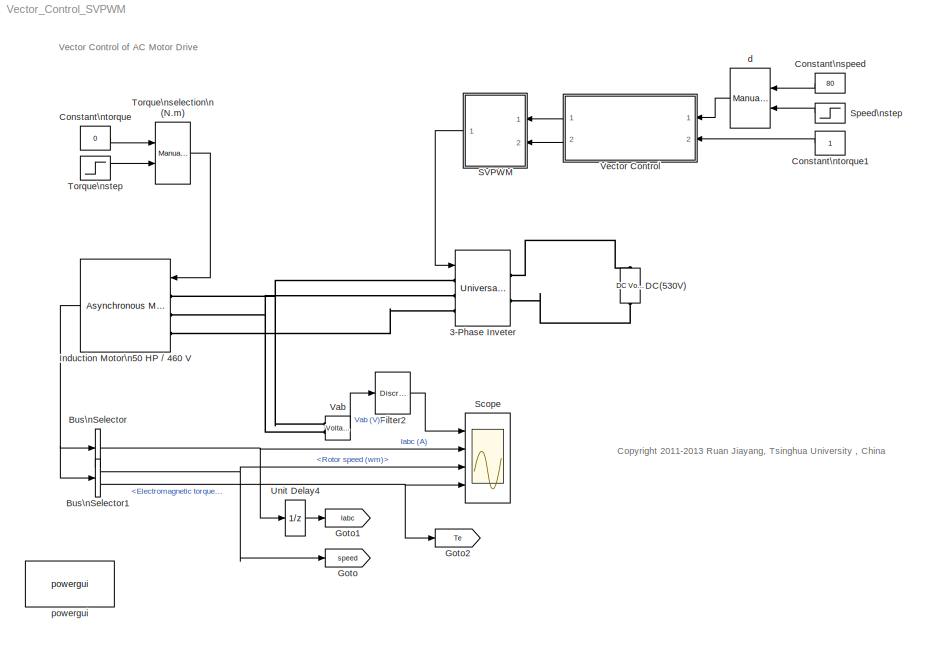
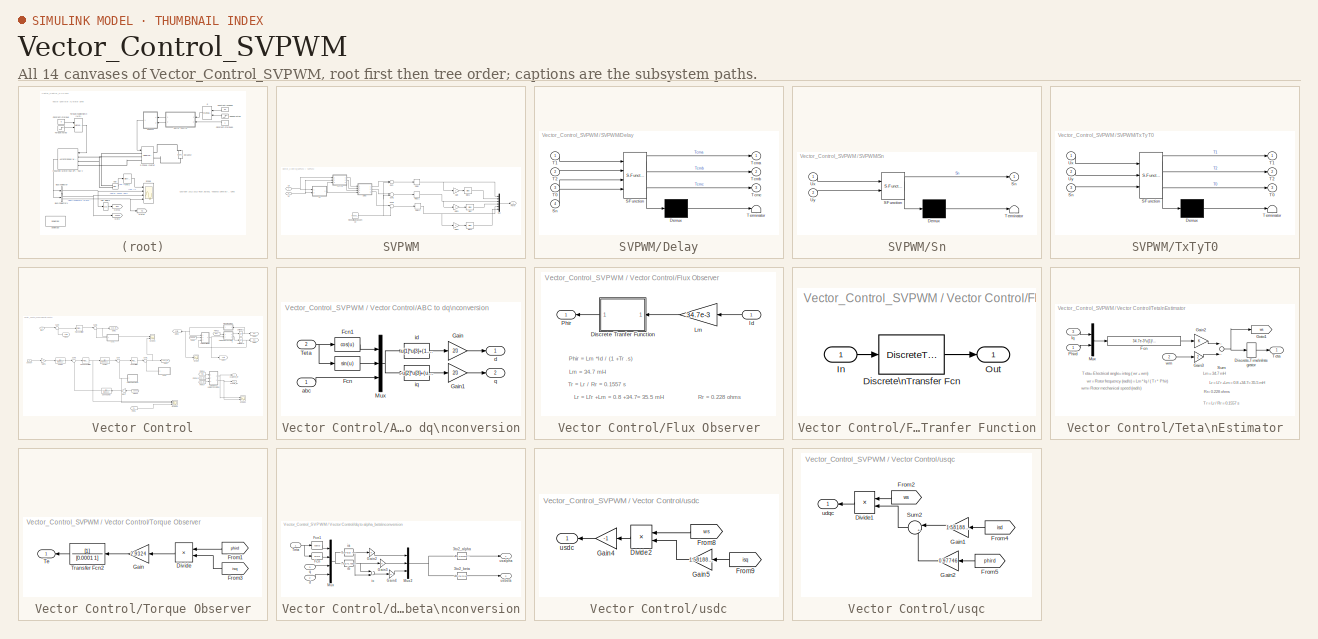
[diagram: thumbnail index - all 14 canvases of the model, root first then tree order]
MODEL Vector_Control_SVPWM
KIND model
CONFIG InitFcn = Ts=1e-5; 
CONFIG PreLoadFcn = Ts=1e-5; 
BLOCK [Reference] 3-Phase Inveter  REF=powerlib/Power\nElectronics/Universal Bridge
  Arms = 3
  Device = IGBT / Diodes
  DialogController = POWERSYS.PowerSysDialog
  ForwardVoltage = 0
  ForwardVoltages = [1.1  0.75]
  FunctionWithSeparateData = off
  GTOparameters = [ 10e-6 , 20e-6 ]
  IGBTparameters = [ 1e-6 , 2e-6 ]
  Lon = 0
  Measurements = None
  Measurements_2 = None
  Ports = [1, 0, 0, 0, 0, 3, 2]
  RTWMemSecDataConstants = Inherit from model
  RTWMemSecDataInternal = Inherit from model
  RTWMemSecDataParameters = Inherit from model
  RTWMemSecFuncExecute = Inherit from model
  RTWMemSecFuncInitTerm = Inherit from model
  Ron = 1e-3
  SID = 675
  ShowPortLabels = FromPortIcon
  SnubberCapacitance = 1e-6
  SnubberResistance = 1e5
  SourceBlock = powerlib/Power\nElectronics/Universal Bridge
  SourceType = Universal Bridge
  SystemSampleTime = -1
  converterType = Rectifier
BLOCK [BusSelector] Bus\nSelector
  OutputAsBus = on
  OutputSignals = Stator measurements.Stator current is_a (A),Stator measurements.Stator current is_b (A),Stator measurements.Stator current is_c (A)
  Ports = [1, 1]
  SID = 1
BLOCK [BusSelector] Bus\nSelector1
  OutputSignals = Mechanical.Rotor speed (wm),Mechanical.Electromagnetic torque Te (N*m)
  Ports = [1, 2]
  SID = 2
BLOCK [Constant] Constant\nspeed
  OutDataType = sfix(16)
  OutScaling = 2^0
  SID = 3
  Value = 80
BLOCK [Constant] Constant\ntorque
  OutDataType = sfix(16)
  OutScaling = 2^0
  SID = 4
  Value = 0
BLOCK [Constant] Constant\ntorque1
  OutDataType = sfix(16)
  OutScaling = 2^0
  SID = 605
BLOCK [Reference] DC(530V)  REF=powerlib/Electrical\nSources/DC Voltage Source
  Amplitude = 530
  DialogController = POWERSYS.PowerSysDialog
  FunctionWithSeparateData = off
  Measurements = None
  Ports = [0, 0, 0, 0, 0, 1, 1]
  RTWMemSecDataConstants = Inherit from model
  RTWMemSecDataInternal = Inherit from model
  RTWMemSecDataParameters = Inherit from model
  RTWMemSecFuncExecute = Inherit from model
  RTWMemSecFuncInitTerm = Inherit from model
  SID = 676
  ShowPortLabels = FromPortIcon
  SourceBlock = powerlib/Electrical\nSources/DC Voltage Source
  SourceType = DC Voltage Source
  SystemSampleTime = -1
BLOCK [Reference] Filter2  REF=powerlib_extras/Discrete \nControl Blocks/Discrete \n2nd-Order\nFilter
  DialogController = POWERSYS.PowerSysDialog
  FilterType = Lowpass
  Fo = 100
  FunctionWithSeparateData = off
  Initialize = off
  PlotResponse = off
  Ports = [1, 1]
  RTWMemSecDataConstants = Inherit from model
  RTWMemSecDataInternal = Inherit from model
  RTWMemSecDataParameters = Inherit from model
  RTWMemSecFuncExecute = Inherit from model
  RTWMemSecFuncInitTerm = Inherit from model
  SID = 680
  ShowPortLabels = FromPortIcon
  SourceBlock = powerlib_extras/Discrete \nControl Blocks/Discrete \n2nd-Order\nFilter
  SourceType = Discrete 2nd-Order Filter
  SystemSampleTime = -1
  Ts = Ts
  Vac_Init = [0.8 -25 60]
  Vdc_Init = -0.4
  Zeta = 0.707
  param1 = [1 500 1]
BLOCK [Goto] Goto
  GotoTag = speed
  SID = 5
  TagVisibility = global
BLOCK [Goto] Goto1
  GotoTag = Iabc
  SID = 6
  TagVisibility = global
BLOCK [Goto] Goto2
  GotoTag = Te
  SID = 627
  TagVisibility = global
BLOCK [Reference] Induction Motor\n50 HP // 460 V  REF=powerlib/Machines/Asynchronous Machine\nSI Units
  AttributesFormatString = \\n
  DialogController = POWERSYS.PowerSysDialog
  FunctionWithSeparateData = off
  InitialConditions = [ 1, 0 ,  0 , 0 , 0 , 0 , 0 , 0 ]
  IterativeModel = Trapezoidal non iterative
  Lm = 34.7e-3
  LoadFlowParameters = 0
  Mechanical = [1.662  0.01 2 ]
  MechanicalLoad = Torque Tm
  NominalParameters = [ 50*746, 460, 60 ]
  PolePairs = 2
  Ports = [1, 1, 0, 0, 0, 3]
  PresetModel = No
  RTWMemSecDataConstants = Inherit from model
  RTWMemSecDataInternal = Inherit from model
  RTWMemSecDataParameters = Inherit from model
  RTWMemSecFuncExecute = Inherit from model
  RTWMemSecFuncInitTerm = Inherit from model
  ReferenceFrame = Stationary
  Rotor = [ 0.228  0.8e-3 ]
  RotorType = Squirrel-cage
  SID = 8
  Saturation = [0 0;0 0]
  ShowDetailedParameters = on
  ShowPortLabels = FromPortIcon
  SimulateSaturation = off
  SourceBlock = powerlib/Machines/Asynchronous Machine\nSI Units
  SourceType = Asynchronous Machine
  Stator = [ 0.087 0.8e-3 ]
  SystemSampleTime = -1
  TsBlock = -1
  TsPowergui = 0
  Units = SI
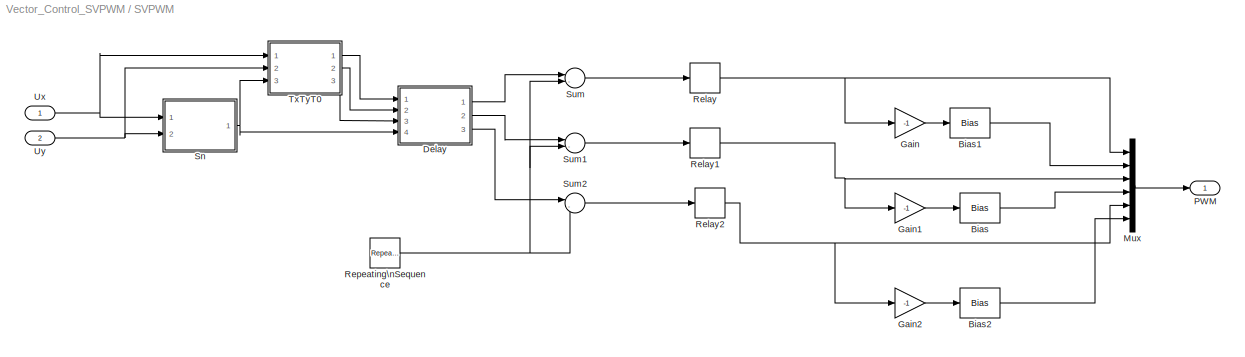
BLOCK [SubSystem] SVPWM
  FunctionWithSeparateData = off
  MaskHideContents = off
  MinAlgLoopOccurrences = off
  Opaque = off
  Ports = [2, 1]
  PropExecContextOutsideSubsystem = off
  RTWSystemCode = Auto
  RequestExecContextInheritance = off
  SID = 648
BLOCK [Bias] SVPWM/Bias
  Bias = 1
  SID = 651
  SaturateOnIntegerOverflow = off
BLOCK [Bias] SVPWM/Bias1
  Bias = 1
  SID = 652
  SaturateOnIntegerOverflow = off
BLOCK [Bias] SVPWM/Bias2
  Bias = 1
  SID = 653
  SaturateOnIntegerOverflow = off
BLOCK [SubSystem] SVPWM/Delay
  FunctionWithSeparateData = off
  MaskDescription = Embedded MATLAB block
  MaskDisplay = disp('D');
  MaskHideContents = off
  MaskIconFrame = on
  MaskIconOpaque = off
  MaskIconRotate = none
  MaskIconUnits = autoscale
  MaskPortRotate = default
  MaskSelfModifiable = on
  MaskType = Stateflow
  MinAlgLoopOccurrences = off
  Opaque = off
  PermitHierarchicalResolution = ExplicitOnly
  Ports = [4, 3]
  PropExecContextOutsideSubsystem = off
  RTWSystemCode = Auto
  RequestExecContextInheritance = off
  SID = 654
  TreatAsAtomicUnit = on
BLOCK [Demux] SVPWM/Delay/ Demux 
  Outputs = 1
  Ports = [1, 1]
  SID = 12
BLOCK [S-Function] SVPWM/Delay/ SFunction 
  EnableBusSupport = on
  FunctionName = sf_sfun
  PortCounts = [4 4]
  Ports = [4, 4]
  SID = 11
  Tag = Stateflow S-Function Vector_Control_SVPWM 4
BLOCK [Terminator] SVPWM/Delay/ Terminator 
  SID = 14
BLOCK [Inport] SVPWM/Delay/Sn
  IconDisplay = Port number
  OutDataType = sfix(16)
  OutScaling = 2^0
  Port = 4
  SID = 4
BLOCK [Inport] SVPWM/Delay/T0
  IconDisplay = Port number
  OutDataType = sfix(16)
  OutScaling = 2^0
  Port = 3
  SID = 3
BLOCK [Inport] SVPWM/Delay/T1
  IconDisplay = Port number
  OutDataType = sfix(16)
  OutScaling = 2^0
  SID = 1
BLOCK [Inport] SVPWM/Delay/T2
  IconDisplay = Port number
  OutDataType = sfix(16)
  OutScaling = 2^0
  Port = 2
  SID = 2
BLOCK [Outport] SVPWM/Delay/Tcma
  IconDisplay = Port number
  OutDataType = sfix(16)
  OutScaling = 2^0
  SID = 8
BLOCK [Outport] SVPWM/Delay/Tcmb
  IconDisplay = Port number
  OutDataType = sfix(16)
  OutScaling = 2^0
  Port = 2
  SID = 9
BLOCK [Outport] SVPWM/Delay/Tcmc
  IconDisplay = Port number
  OutDataType = sfix(16)
  OutScaling = 2^0
  Port = 3
  SID = 10
BLOCK [Gain] SVPWM/Gain
  Gain = -1
  OutDataType = fixdt(1, 16)
  OutDataTypeMode = Inherit via internal rule
  OutDataTypeStr = Inherit: Inherit via internal rule
  OutScaling = 2^0
  ParamDataTypeStr = Inherit: Inherit via internal rule
  ParameterDataType = fixdt(1, 16)
  ParameterDataTypeMode = Inherit via internal rule
  ParameterScaling = 2^0
  SID = 655
  SaturateOnIntegerOverflow = off
BLOCK [Gain] SVPWM/Gain1
  Gain = -1
  OutDataType = fixdt(1, 16)
  OutDataTypeMode = Inherit via internal rule
  OutDataTypeStr = Inherit: Inherit via internal rule
  OutScaling = 2^0
  ParamDataTypeStr = Inherit: Inherit via internal rule
  ParameterDataType = fixdt(1, 16)
  ParameterDataTypeMode = Inherit via internal rule
  ParameterScaling = 2^0
  SID = 656
  SaturateOnIntegerOverflow = off
BLOCK [Gain] SVPWM/Gain2
  Gain = -1
  OutDataType = fixdt(1, 16)
  OutDataTypeMode = Inherit via internal rule
  OutDataTypeStr = Inherit: Inherit via internal rule
  OutScaling = 2^0
  ParamDataTypeStr = Inherit: Inherit via internal rule
  ParameterDataType = fixdt(1, 16)
  ParameterDataTypeMode = Inherit via internal rule
  ParameterScaling = 2^0
  SID = 657
  SaturateOnIntegerOverflow = off
BLOCK [Mux] SVPWM/Mux
  DisplayOption = bar
  Inputs = 6
  Ports = [6, 1]
  SID = 658
BLOCK [Outport] SVPWM/PWM
  IconDisplay = Port number
  SID = 670
BLOCK [Relay] SVPWM/Relay
  OffSwitchValue = 0
  OnSwitchValue = 0
  OutDataType = sfix(16)
  OutScaling = 2^0
  SID = 659
BLOCK [Relay] SVPWM/Relay1
  OffSwitchValue = 0
  OnSwitchValue = 0
  OutDataType = sfix(16)
  OutScaling = 2^0
  SID = 660
BLOCK [Relay] SVPWM/Relay2
  OffSwitchValue = 0
  OnSwitchValue = 0
  OutDataType = sfix(16)
  OutScaling = 2^0
  SID = 661
BLOCK [Reference] SVPWM/Repeating\nSequence  REF=simulink/Sources/Repeating\nSequence
  FunctionWithSeparateData = off
  Ports = [0, 1]
  RTWMemSecDataConstants = Inherit from model
  RTWMemSecDataInternal = Inherit from model
  RTWMemSecDataParameters = Inherit from model
  RTWMemSecFuncExecute = Inherit from model
  RTWMemSecFuncInitTerm = Inherit from model
  SID = 662
  ShowPortLabels = FromPortIcon
  SourceBlock = simulink/Sources/Repeating\nSequence
  SourceType = Repeating table
  SystemSampleTime = -1
  rep_seq_t = [0 1/2000/2 1/2000]
  rep_seq_y = [0 1/2000/2 0]
BLOCK [SubSystem] SVPWM/Sn
  FunctionWithSeparateData = off
  MaskDescription = Embedded MATLAB block
  MaskDisplay = disp('S');
  MaskHideContents = off
  MaskIconFrame = on
  MaskIconOpaque = off
  MaskIconRotate = none
  MaskIconUnits = autoscale
  MaskPortRotate = default
  MaskSelfModifiable = on
  MaskType = Stateflow
  MinAlgLoopOccurrences = off
  Opaque = off
  PermitHierarchicalResolution = ExplicitOnly
  Ports = [2, 1]
  PropExecContextOutsideSubsystem = off
  RTWSystemCode = Auto
  RequestExecContextInheritance = off
  SID = 665
  TreatAsAtomicUnit = on
BLOCK [Demux] SVPWM/Sn/ Demux 
  Outputs = 1
  Ports = [1, 1]
  SID = 8
BLOCK [S-Function] SVPWM/Sn/ SFunction 
  EnableBusSupport = on
  FunctionName = sf_sfun
  PortCounts = [2 2]
  Ports = [2, 2]
  SID = 7
  Tag = Stateflow S-Function Vector_Control_SVPWM 1
BLOCK [Terminator] SVPWM/Sn/ Terminator 
  SID = 10
BLOCK [Outport] SVPWM/Sn/Sn
  IconDisplay = Port number
  OutDataType = sfix(16)
  OutScaling = 2^0
  SID = 6
BLOCK [Inport] SVPWM/Sn/Ux
  IconDisplay = Port number
  OutDataType = sfix(16)
  OutScaling = 2^0
  SID = 1
BLOCK [Inport] SVPWM/Sn/Uy
  IconDisplay = Port number
  OutDataType = sfix(16)
  OutScaling = 2^0
  Port = 2
  SID = 2
BLOCK [Sum] SVPWM/Sum
  IconShape = round
  InputSameDT = off
  Inputs = |-+
  OutDataType = sfix(16)
  OutDataTypeMode = Inherit via internal rule
  OutDataTypeStr = Inherit: Inherit via internal rule
  OutScaling = 2^0
  Ports = [2, 1]
  SID = 666
  SaturateOnIntegerOverflow = off
BLOCK [Sum] SVPWM/Sum1
  IconShape = round
  InputSameDT = off
  Inputs = |-+
  OutDataType = sfix(16)
  OutDataTypeMode = Inherit via internal rule
  OutDataTypeStr = Inherit: Inherit via internal rule
  OutScaling = 2^0
  Ports = [2, 1]
  SID = 667
  SaturateOnIntegerOverflow = off
BLOCK [Sum] SVPWM/Sum2
  IconShape = round
  InputSameDT = off
  Inputs = |-+
  OutDataType = sfix(16)
  OutDataTypeMode = Inherit via internal rule
  OutDataTypeStr = Inherit: Inherit via internal rule
  OutScaling = 2^0
  Ports = [2, 1]
  SID = 668
  SaturateOnIntegerOverflow = off
BLOCK [SubSystem] SVPWM/TxTyT0
  FunctionWithSeparateData = off
  MaskDescription = Embedded MATLAB block
  MaskDisplay = disp('T');
  MaskHideContents = off
  MaskIconFrame = on
  MaskIconOpaque = off
  MaskIconRotate = none
  MaskIconUnits = autoscale
  MaskPortRotate = default
  MaskSelfModifiable = on
  MaskType = Stateflow
  MinAlgLoopOccurrences = off
  Opaque = off
  PermitHierarchicalResolution = ExplicitOnly
  Ports = [3, 3]
  PropExecContextOutsideSubsystem = off
  RTWSystemCode = Auto
  RequestExecContextInheritance = off
  SID = 669
  TreatAsAtomicUnit = on
BLOCK [Demux] SVPWM/TxTyT0/ Demux 
  Outputs = 1
  Ports = [1, 1]
  SID = 11
BLOCK [S-Function] SVPWM/TxTyT0/ SFunction 
  EnableBusSupport = on
  FunctionName = sf_sfun
  PortCounts = [3 4]
  Ports = [3, 4]
  SID = 10
  Tag = Stateflow S-Function Vector_Control_SVPWM 3
BLOCK [Terminator] SVPWM/TxTyT0/ Terminator 
  SID = 13
BLOCK [Inport] SVPWM/TxTyT0/Sn
  IconDisplay = Port number
  OutDataType = sfix(16)
  OutScaling = 2^0
  Port = 3
  SID = 3
BLOCK [Outport] SVPWM/TxTyT0/T0
  IconDisplay = Port number
  OutDataType = sfix(16)
  OutScaling = 2^0
  Port = 3
  SID = 9
BLOCK [Outport] SVPWM/TxTyT0/T1
  IconDisplay = Port number
  OutDataType = sfix(16)
  OutScaling = 2^0
  SID = 7
BLOCK [Outport] SVPWM/TxTyT0/T2
  IconDisplay = Port number
  OutDataType = sfix(16)
  OutScaling = 2^0
  Port = 2
  SID = 8
BLOCK [Inport] SVPWM/TxTyT0/Ux
  IconDisplay = Port number
  OutDataType = sfix(16)
  OutScaling = 2^0
  SID = 1
BLOCK [Inport] SVPWM/TxTyT0/Uy
  IconDisplay = Port number
  OutDataType = sfix(16)
  OutScaling = 2^0
  Port = 2
  SID = 2
BLOCK [Inport] SVPWM/Ux
  IconDisplay = Port number
  OutDataType = fixdt(1, 16)
  OutScaling = 2^0
  SID = 649
BLOCK [Inport] SVPWM/Uy
  IconDisplay = Port number
  OutDataType = fixdt(1, 16)
  OutScaling = 2^0
  Port = 2
  SID = 650
BLOCK [Scope] Scope
  DataFormat = StructureWithTime
  Floating = off
  LimitDataPoints = off
  NumInputPorts = 4
  Ports = [4]
  SID = 11
  SampleTime = 5e-6
  TimeRange = 3
  YMax = 700~30~171.175~-0.75
  YMin = -700~-30~170.775~-1.4
  ZoomMode = xonly
BLOCK [Step] Speed\nstep
  After = 160
  Before = 80
  SID = 12
  SampleTime = Ts
  Time = 1.5
BLOCK [Reference] Torque\nselection\n(N.m)  REF=simulink/Signal\nRouting/Manual Switch
  FunctionWithSeparateData = off
  Ports = [2, 1]
  RTWMemSecDataConstants = Inherit from model
  RTWMemSecDataInternal = Inherit from model
  RTWMemSecDataParameters = Inherit from model
  RTWMemSecFuncExecute = Inherit from model
  RTWMemSecFuncInitTerm = Inherit from model
  SID = 13
  ShowPortLabels = FromPortIcon
  SourceBlock = simulink/Signal\nRouting/Manual Switch
  SourceType = Manual Switch
  SystemSampleTime = -1
  action = 0
  sw = 1
  varsize = off
BLOCK [Step] Torque\nstep
  After = 200
  SID = 14
  SampleTime = 0
  Time = 1.8
BLOCK [UnitDelay] Unit Delay4
  SID = 15
  SampleTime = Ts
BLOCK [Reference] Vab  REF=powerlib/Measurements/Voltage Measurement
  AttributesFormatString = \\n
  DialogController = POWERSYS.PowerSysDialog
  FunctionWithSeparateData = off
  OutputType = Magnitude
  PSBequivalent = 0
  PhasorSimulation = off
  Ports = [0, 1, 0, 0, 0, 2]
  RTWMemSecDataConstants = Inherit from model
  RTWMemSecDataInternal = Inherit from model
  RTWMemSecDataParameters = Inherit from model
  RTWMemSecFuncExecute = Inherit from model
  RTWMemSecFuncInitTerm = Inherit from model
  SID = 17
  ShowPortLabels = FromPortIcon
  SourceBlock = powerlib/Measurements/Voltage Measurement
  SourceType = Voltage Measurement
  SystemSampleTime = -1
  Tag = PoWeRsYsTeMmEaSuReMeNt
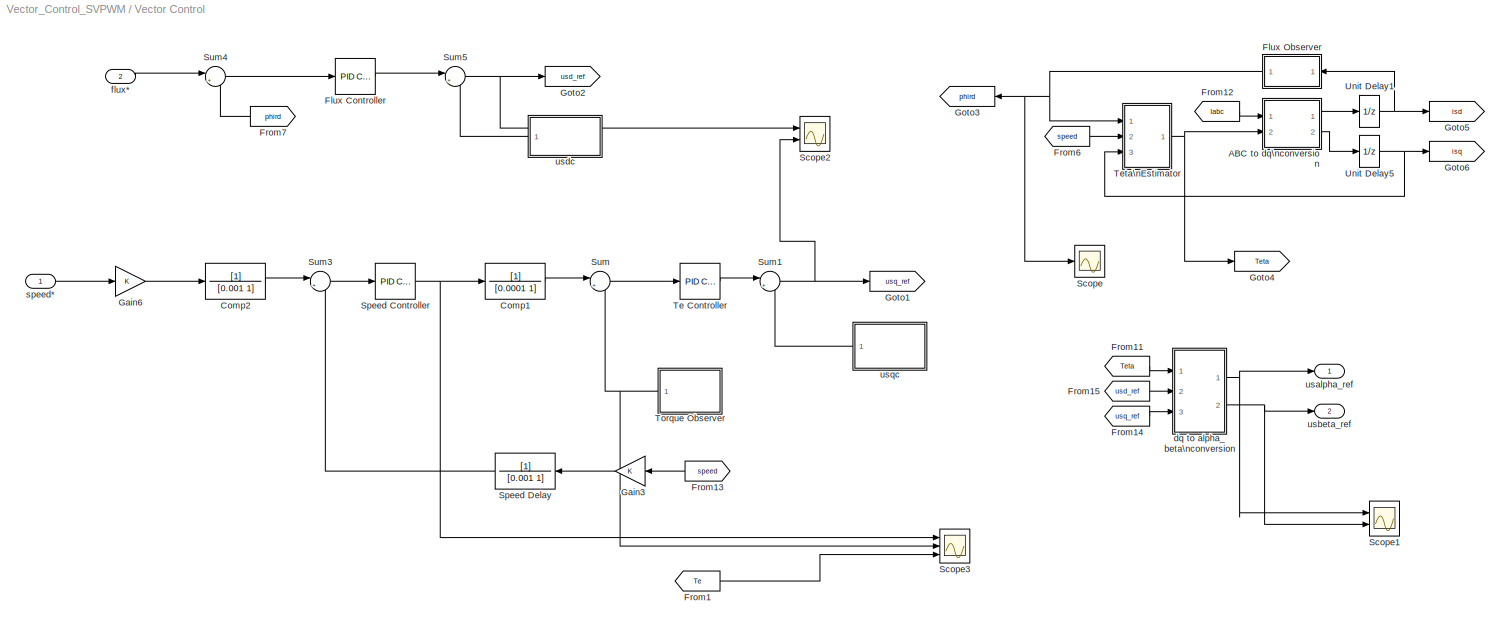
BLOCK [SubSystem] Vector Control
  FunctionWithSeparateData = off
  MaskHideContents = off
  MinAlgLoopOccurrences = off
  Opaque = off
  Ports = [2, 2]
  PropExecContextOutsideSubsystem = off
  RTWSystemCode = Auto
  RequestExecContextInheritance = off
  SID = 357
BLOCK [SubSystem] Vector Control/ABC to dq\nconversion
  FunctionWithSeparateData = off
  MaskHideContents = off
  MinAlgLoopOccurrences = off
  Opaque = off
  Ports = [2, 2]
  PropExecContextOutsideSubsystem = off
  RTWSystemCode = Auto
  RequestExecContextInheritance = off
  SID = 411
BLOCK [Fcn] Vector Control/ABC to dq\nconversion/Fcn
  Expr = sin(u)
  SID = 414
BLOCK [Fcn] Vector Control/ABC to dq\nconversion/Fcn1
  Expr = cos(u)
  SID = 415
BLOCK [Gain] Vector Control/ABC to dq\nconversion/Gain
  Gain = 2/3
  OutDataType = sfix(16)
  OutScaling = 2^0
  ParameterDataType = sfix(16)
  ParameterScaling = 2^0
  SID = 416
BLOCK [Gain] Vector Control/ABC to dq\nconversion/Gain1
  Gain = 2/3
  OutDataType = sfix(16)
  OutScaling = 2^0
  ParameterDataType = sfix(16)
  ParameterScaling = 2^0
  SID = 417
BLOCK [Mux] Vector Control/ABC to dq\nconversion/Mux
  Inputs = [1 1 3]
  Ports = [3, 1]
  SID = 418
BLOCK [Inport] Vector Control/ABC to dq\nconversion/Teta
  IconDisplay = Port number
  OutDataType = sfix(16)
  OutScaling = 2^0
  Port = 2
  SID = 413
BLOCK [Inport] Vector Control/ABC to dq\nconversion/abc
  IconDisplay = Port number
  OutDataType = sfix(16)
  OutScaling = 2^0
  SID = 412
BLOCK [Outport] Vector Control/ABC to dq\nconversion/d
  IconDisplay = Port number
  InitialOutput = 0
  OutDataType = sfix(16)
  OutScaling = 2^0
  SID = 421
BLOCK [Fcn] Vector Control/ABC to dq\nconversion/id
  Expr = u[1]*u[3]+(1.7320508*u[2]-u[1])*u[4]*0.5+(-u[1]-1.7320508*u[2])*u[5]*0.5
  SID = 419
BLOCK [Fcn] Vector Control/ABC to dq\nconversion/iq
  Expr = -u[2]*u[3]+(u[2]+1.7320508*u[1])*u[4]*0.5+(u[2]-1.7320508*u[1])*u[5]*0.5
  SID = 420
BLOCK [Outport] Vector Control/ABC to dq\nconversion/q
  IconDisplay = Port number
  InitialOutput = 0
  OutDataType = sfix(16)
  OutScaling = 2^0
  Port = 2
  SID = 422
BLOCK [TransferFcn] Vector Control/Comp1
  Denominator = [0.0001 1]
  SID = 361
BLOCK [TransferFcn] Vector Control/Comp2
  Denominator = [0.001 1]
  SID = 393
BLOCK [Reference] Vector Control/Flux Controller  REF=simulink/Continuous/PID Controller
  AntiWindupMode = clamping
  Controller = PID
  D = 0
  DOutDataTypeStr = Inherit: Inherit via internal rule
  DOutMax = []
  DOutMin = []
  DParamDataTypeStr = Inherit: Inherit via internal rule
  DParamMax = []
  DParamMin = []
  DialogController = pidpack.PIDConfig.pidDDGCreate
  DialogControllerArgs = DataTag0
  ExternalReset = none
  FilterContinuousStateAttributes = ''
  FilterMethod = Forward Euler
  FilterOutDataTypeStr = Inherit: Inherit via internal rule
  FilterOutMax = []
  FilterOutMin = []
  FilterRTWStateStorageClass = Auto
  FilterStateMustResolveToSignalObject = off
  Form = Parallel
  FunctionWithSeparateData = off
  I = 247.3835
  IOutDataTypeStr = Inherit: Inherit via internal rule
  IOutMax = []
  IOutMin = []
  IParamDataTypeStr = Inherit: Inherit via internal rule
  IParamMax = []
  IParamMin = []
  IgnoreLimit = off
  InitialConditionForFilter = 0
  InitialConditionForIntegrator = 100
  InitialConditionSource = internal
  IntegratorContinuousStateAttributes = ''
  IntegratorMethod = Forward Euler
  IntegratorOutDataTypeStr = Inherit: Inherit via internal rule
  IntegratorOutMax = []
  IntegratorOutMin = []
  IntegratorRTWStateStorageClass = Auto
  IntegratorStateMustResolveToSignalObject = off
  Kb = 1
  KbOutDataTypeStr = Inherit: Inherit via internal rule
  KbOutMax = []
  KbOutMin = []
  KbParamDataTypeStr = Inherit: Inherit via internal rule
  KbParamMax = []
  KbParamMin = []
  Kt = 1
  KtOutDataTypeStr = Inherit: Inherit via internal rule
  KtOutMax = []
  KtOutMin = []
  KtParamDataTypeStr = Inherit: Inherit via internal rule
  KtParamMax = []
  KtParamMin = []
  LimitOutput = on
  LinearizeAsGain = off
  LockScale = off
  LowerSaturationLimit = -200
  N = 100
  NOutDataTypeStr = Inherit: Inherit via internal rule
  NOutMax = []
  NOutMin = []
  NParamDataTypeStr = Inherit: Inherit via internal rule
  NParamMax = []
  NParamMin = []
  P = 138.2107
  POutDataTypeStr = Inherit: Inherit via internal rule
  POutMax = []
  POutMin = []
  PParamDataTypeStr = Inherit: Inherit via internal rule
  PParamMax = []
  PParamMin = []
  Ports = [1, 1]
  RTWMemSecDataConstants = Inherit from model
  RTWMemSecDataInternal = Inherit from model
  RTWMemSecDataParameters = Inherit from model
  RTWMemSecFuncExecute = Inherit from model
  RTWMemSecFuncInitTerm = Inherit from model
  RndMeth = Floor
  SID = 610
  SampleTime = 1
  SaturateOnIntegerOverflow = off
  SaturationOutDataTypeStr = Inherit: Same as input
  SaturationOutMax = []
  SaturationOutMin = []
  ShowPortLabels = FromPortIcon
  SourceBlock = simulink/Continuous/PID Controller
  SourceType = PID 1dof
  SumAccumDataTypeStr = Inherit: Inherit via internal rule
  SumDAccumDataTypeStr = Inherit: Inherit via internal rule
  SumDOutDataTypeStr = Inherit: Inherit via internal rule
  SumDOutMax = []
  SumDOutMin = []
  SumI1AccumDataTypeStr = Inherit: Inherit via internal rule
  SumI1OutDataTypeStr = Inherit: Inherit via internal rule
  SumI1OutMax = []
  SumI1OutMin = []
  SumI2AccumDataTypeStr = Inherit: Inherit via internal rule
  SumI2OutDataTypeStr = Inherit: Inherit via internal rule
  SumI2OutMax = []
  SumI2OutMin = []
  SumI3AccumDataTypeStr = Inherit: Inherit via internal rule
  SumI3OutDataTypeStr = Inherit: Inherit via internal rule
  SumI3OutMax = []
  SumI3OutMin = []
  SumOutDataTypeStr = Inherit: Inherit via internal rule
  SumOutMax = []
  SumOutMin = []
  SystemSampleTime = -1
  TimeDomain = Continuous-time
  TrackingMode = off
  UpperSaturationLimit = 200
  ZeroCross = on
BLOCK [SubSystem] Vector Control/Flux Observer
  FunctionWithSeparateData = off
  MaskHideContents = off
  MaskIconFrame = on
  MaskIconOpaque = off
  MaskIconRotate = none
  MaskIconUnits = autoscale
  MaskInitialization = NF=0.44572610323020e-6;\nDF=[1 -0.99998715486734];
  MaskPortRotate = default
  MaskType = Flux Calcultation
  MinAlgLoopOccurrences = off
  Opaque = off
  Ports = [1, 1]
  PropExecContextOutsideSubsystem = off
  RTWSystemCode = Auto
  RequestExecContextInheritance = off
  SID = 445
BLOCK [SubSystem] Vector Control/Flux Observer/Discrete Tranfer Function
  FunctionWithSeparateData = off
  MaskCallbackString = |
  MaskDescription = H(s)=1/(1+T.s)
  MaskDisplay = plot(X,Y);\ndisp(str);\n
  MaskEnableString = on,on
  MaskHideContents = off
  MaskIconFrame = on
  MaskIconOpaque = on
  MaskIconRotate = none
  MaskIconUnits = autoscale
  MaskInitialization = X=[0 1 2 3 4];\n Y=[-2 -2 -3 -4 -4];\n str=sprintf('\\nH=1/(1+T.s)\\n T= %g s<path>',T);\nnum=1;\nden=[T 1];\n\n% discrete transfer function\n% descending powers of z\nnumd= Ts/T;\ndend=[ 1  (Ts-T)/T];\n\n
  MaskPortRotate = default
  MaskPromptString = Time constant T (s) :|Time step (s)
  MaskStyleString = edit,edit
  MaskToolTipString = on,on
  MaskTunableValueString = on,on
  MaskType = First Order Low Pass Filter (Discrete)
  MaskValueString = 0.1557|Ts
  MaskVariables = T=@1;Ts=@2;
  MaskVisibilityString = on,on
  MinAlgLoopOccurrences = off
  Opaque = off
  Ports = [1, 1]
  PropExecContextOutsideSubsystem = off
  RTWSystemCode = Auto
  RequestExecContextInheritance = off
  SID = 447
BLOCK [DiscreteTransferFcn] Vector Control/Flux Observer/Discrete Tranfer Function/Discrete\nTransfer Fcn
  Denominator = dend
  Numerator = numd
  Ports = [1, 1]
  SID = 449
  SampleTime = Ts
BLOCK [Inport] Vector Control/Flux Observer/Discrete Tranfer Function/In
  IconDisplay = Port number
  OutDataType = sfix(16)
  OutScaling = 2^0
  SID = 448
BLOCK [Outport] Vector Control/Flux Observer/Discrete Tranfer Function/Out
  IconDisplay = Port number
  InitialOutput = 0
  OutDataType = sfix(16)
  OutScaling = 2^0
  SID = 450
BLOCK [Inport] Vector Control/Flux Observer/Id
  IconDisplay = Port number
  OutDataType = sfix(16)
  OutScaling = 2^0
  SID = 446
BLOCK [Gain] Vector Control/Flux Observer/Lm
  Gain = 34.7e-3
  OutDataType = sfix(16)
  OutScaling = 2^0
  ParameterDataType = sfix(16)
  ParameterScaling = 2^0
  SID = 451
BLOCK [Outport] Vector Control/Flux Observer/Phir
  IconDisplay = Port number
  OutDataType = sfix(16)
  OutScaling = 2^0
  SID = 452
BLOCK [From] Vector Control/From1
  CloseFcn = tagdialog Close
  GotoTag = Te
  SID = 644
  TagVisibility = global
BLOCK [From] Vector Control/From11
  CloseFcn = tagdialog Close
  GotoTag = Teta
  SID = 511
  TagVisibility = global
BLOCK [From] Vector Control/From12
  CloseFcn = tagdialog Close
  GotoTag = Iabc
  SID = 456
  TagVisibility = global
BLOCK [From] Vector Control/From13
  CloseFcn = tagdialog Close
  GotoTag = speed
  SID = 614
  TagVisibility = global
BLOCK [From] Vector Control/From14
  CloseFcn = tagdialog Close
  GotoTag = usq_ref
  SID = 633
  TagVisibility = global
BLOCK [From] Vector Control/From15
  CloseFcn = tagdialog Close
  GotoTag = usd_ref
  SID = 634
  TagVisibility = global
BLOCK [From] Vector Control/From6
  CloseFcn = tagdialog Close
  GotoTag = speed
  SID = 615
  TagVisibility = global
BLOCK [From] Vector Control/From7
  CloseFcn = tagdialog Close
  GotoTag = phird
  SID = 399
  TagVisibility = global
BLOCK [Gain] Vector Control/Gain3
  OutDataType = fixdt(1, 16)
  OutDataTypeMode = Inherit via internal rule
  OutDataTypeStr = Inherit: Inherit via internal rule
  OutScaling = 2^0
  ParamDataTypeStr = Inherit: Inherit via internal rule
  ParameterDataType = fixdt(1, 16)
  ParameterDataTypeMode = Inherit via internal rule
  ParameterScaling = 2^0
  SID = 389
  SaturateOnIntegerOverflow = off
BLOCK [Gain] Vector Control/Gain6
  OutDataType = fixdt(1, 16)
  OutDataTypeMode = Inherit via internal rule
  OutDataTypeStr = Inherit: Inherit via internal rule
  OutScaling = 2^0
  ParamDataTypeStr = Inherit: Inherit via internal rule
  ParameterDataType = fixdt(1, 16)
  ParameterDataTypeMode = Inherit via internal rule
  ParameterScaling = 2^0
  SID = 604
  SaturateOnIntegerOverflow = off
BLOCK [Goto] Vector Control/Goto1
  GotoTag = usq_ref
  SID = 386
  TagVisibility = global
BLOCK [Goto] Vector Control/Goto2
  GotoTag = usd_ref
  SID = 407
  TagVisibility = global
BLOCK [Goto] Vector Control/Goto3
  GotoTag = phird
  SID = 509
  TagVisibility = global
BLOCK [Goto] Vector Control/Goto4
  GotoTag = Teta
  SID = 510
  TagVisibility = global
BLOCK [Goto] Vector Control/Goto5
  GotoTag = isd
  SID = 617
  TagVisibility = global
BLOCK [Goto] Vector Control/Goto6
  GotoTag = isq
  SID = 618
  TagVisibility = global
BLOCK [Scope] Vector Control/Scope
  DataFormat = StructureWithTime
  Decimation = 10
  Floating = off
  LimitDataPoints = off
  NumInputPorts = 1
  Ports = [1]
  SID = 622
  SampleTime = 0
  SaveName = ScopeData1
  ZoomMode = yonly
BLOCK [Scope] Vector Control/Scope1
  DataFormat = StructureWithTime
  Decimation = 10
  Floating = off
  LimitDataPoints = off
  NumInputPorts = 2
  Ports = [2]
  SID = 678
  SampleTime = 0
  SaveName = ScopeData2
  YMax = 500~170.1
  YMin = -500~170.05
  ZoomMode = xonly
BLOCK [Scope] Vector Control/Scope2
  DataFormat = StructureWithTime
  Decimation = 10
  Floating = off
  LimitDataPoints = off
  NumInputPorts = 2
  Ports = [2]
  SID = 679
  SampleTime = 0
  SaveName = ScopeData3
  YMax = 500~170.1
  YMin = -500~170.05
  ZoomMode = yonly
BLOCK [Scope] Vector Control/Scope3
  DataFormat = StructureWithTime
  Decimation = 10
  Floating = off
  LimitDataPoints = off
  NumInputPorts = 3
  Ports = [3]
  SID = 645
  SampleTime = 0
  SaveName = ScopeData4
  YMax = 600~170.1~5
  YMin = -200~170.05~-5
  ZoomMode = yonly
BLOCK [Reference] Vector Control/Speed Controller  REF=simulink/Continuous/PID Controller
  AntiWindupMode = clamping
  Controller = PID
  D = 0
  DOutDataTypeStr = Inherit: Inherit via internal rule
  DOutMax = []
  DOutMin = []
  DParamDataTypeStr = Inherit: Inherit via internal rule
  DParamMax = []
  DParamMin = []
  DialogController = pidpack.PIDConfig.pidDDGCreate
  DialogControllerArgs = DataTag1
  ExternalReset = none
  FilterContinuousStateAttributes = ''
  FilterMethod = Forward Euler
  FilterOutDataTypeStr = Inherit: Inherit via internal rule
  FilterOutMax = []
  FilterOutMin = []
  FilterRTWStateStorageClass = Auto
  FilterStateMustResolveToSignalObject = off
  Form = Parallel
  FunctionWithSeparateData = off
  I = 27700
  IOutDataTypeStr = Inherit: Inherit via internal rule
  IOutMax = []
  IOutMin = []
  IParamDataTypeStr = Inherit: Inherit via internal rule
  IParamMax = []
  IParamMin = []
  IgnoreLimit = off
  InitialConditionForFilter = 0
  InitialConditionForIntegrator = 50
  InitialConditionSource = internal
  IntegratorContinuousStateAttributes = ''
  IntegratorMethod = Forward Euler
  IntegratorOutDataTypeStr = Inherit: Inherit via internal rule
  IntegratorOutMax = []
  IntegratorOutMin = []
  IntegratorRTWStateStorageClass = Auto
  IntegratorStateMustResolveToSignalObject = off
  Kb = 1
  KbOutDataTypeStr = Inherit: Inherit via internal rule
  KbOutMax = []
  KbOutMin = []
  KbParamDataTypeStr = Inherit: Inherit via internal rule
  KbParamMax = []
  KbParamMin = []
  Kt = 1
  KtOutDataTypeStr = Inherit: Inherit via internal rule
  KtOutMax = []
  KtOutMin = []
  KtParamDataTypeStr = Inherit: Inherit via internal rule
  KtParamMax = []
  KtParamMin = []
  LimitOutput = on
  LinearizeAsGain = off
  LockScale = off
  LowerSaturationLimit = -200
  N = 100
  NOutDataTypeStr = Inherit: Inherit via internal rule
  NOutMax = []
  NOutMin = []
  NParamDataTypeStr = Inherit: Inherit via internal rule
  NParamMax = []
  NParamMin = []
  P = 166.2
  POutDataTypeStr = Inherit: Inherit via internal rule
  POutMax = []
  POutMin = []
  PParamDataTypeStr = Inherit: Inherit via internal rule
  PParamMax = []
  PParamMin = []
  Ports = [1, 1]
  RTWMemSecDataConstants = Inherit from model
  RTWMemSecDataInternal = Inherit from model
  RTWMemSecDataParameters = Inherit from model
  RTWMemSecFuncExecute = Inherit from model
  RTWMemSecFuncInitTerm = Inherit from model
  RndMeth = Floor
  SID = 611
  SampleTime = 1
  SaturateOnIntegerOverflow = off
  SaturationOutDataTypeStr = Inherit: Same as input
  SaturationOutMax = []
  SaturationOutMin = []
  ShowPortLabels = FromPortIcon
  SourceBlock = simulink/Continuous/PID Controller
  SourceType = PID 1dof
  SumAccumDataTypeStr = Inherit: Inherit via internal rule
  SumDAccumDataTypeStr = Inherit: Inherit via internal rule
  SumDOutDataTypeStr = Inherit: Inherit via internal rule
  SumDOutMax = []
  SumDOutMin = []
  SumI1AccumDataTypeStr = Inherit: Inherit via internal rule
  SumI1OutDataTypeStr = Inherit: Inherit via internal rule
  SumI1OutMax = []
  SumI1OutMin = []
  SumI2AccumDataTypeStr = Inherit: Inherit via internal rule
  SumI2OutDataTypeStr = Inherit: Inherit via internal rule
  SumI2OutMax = []
  SumI2OutMin = []
  SumI3AccumDataTypeStr = Inherit: Inherit via internal rule
  SumI3OutDataTypeStr = Inherit: Inherit via internal rule
  SumI3OutMax = []
  SumI3OutMin = []
  SumOutDataTypeStr = Inherit: Inherit via internal rule
  SumOutMax = []
  SumOutMin = []
  SystemSampleTime = -1
  TimeDomain = Continuous-time
  TrackingMode = off
  UpperSaturationLimit = 200
  ZeroCross = on
BLOCK [TransferFcn] Vector Control/Speed Delay
  Denominator = [0.001 1]
  SID = 392
BLOCK [Sum] Vector Control/Sum
  IconShape = round
  InputSameDT = off
  Inputs = |+-
  OutDataType = fixdt(1, 16)
  OutDataTypeMode = Inherit via internal rule
  OutDataTypeStr = Inherit: Inherit via internal rule
  OutScaling = 2^0
  Ports = [2, 1]
  SID = 362
  SaturateOnIntegerOverflow = off
BLOCK [Sum] Vector Control/Sum1
  IconShape = round
  InputSameDT = off
  Inputs = |++
  OutDataType = fixdt(1, 16)
  OutDataTypeMode = Inherit via internal rule
  OutDataTypeStr = Inherit: Inherit via internal rule
  OutScaling = 2^0
  Ports = [2, 1]
  SID = 366
  SaturateOnIntegerOverflow = off
BLOCK [Sum] Vector Control/Sum3
  IconShape = round
  InputSameDT = off
  Inputs = |+-
  OutDataType = fixdt(1, 16)
  OutDataTypeMode = Inherit via internal rule
  OutDataTypeStr = Inherit: Inherit via internal rule
  OutScaling = 2^0
  Ports = [2, 1]
  SID = 390
  SaturateOnIntegerOverflow = off
BLOCK [Sum] Vector Control/Sum4
  IconShape = round
  InputSameDT = off
  Inputs = |+-
  OutDataType = fixdt(1, 16)
  OutDataTypeMode = Inherit via internal rule
  OutDataTypeStr = Inherit: Inherit via internal rule
  OutScaling = 2^0
  Ports = [2, 1]
  SID = 397
  SaturateOnIntegerOverflow = off
BLOCK [Sum] Vector Control/Sum5
  IconShape = round
  InputSameDT = off
  Inputs = |++
  OutDataType = fixdt(1, 16)
  OutDataTypeMode = Inherit via internal rule
  OutDataTypeStr = Inherit: Inherit via internal rule
  OutScaling = 2^0
  Ports = [2, 1]
  SID = 400
  SaturateOnIntegerOverflow = off
BLOCK [Reference] Vector Control/Te Controller  REF=simulink/Continuous/PID Controller
  AntiWindupMode = clamping
  Controller = PID
  D = 0
  DOutDataTypeStr = Inherit: Inherit via internal rule
  DOutMax = []
  DOutMin = []
  DParamDataTypeStr = Inherit: Inherit via internal rule
  DParamMax = []
  DParamMin = []
  DialogController = pidpack.PIDConfig.pidDDGCreate
  DialogControllerArgs = DataTag2
  ExternalReset = none
  FilterContinuousStateAttributes = ''
  FilterMethod = Forward Euler
  FilterOutDataTypeStr = Inherit: Inherit via internal rule
  FilterOutMax = []
  FilterOutMin = []
  FilterRTWStateStorageClass = Auto
  FilterStateMustResolveToSignalObject = off
  Form = Parallel
  FunctionWithSeparateData = off
  I = 148.34534
  IOutDataTypeStr = Inherit: Inherit via internal rule
  IOutMax = []
  IOutMin = []
  IParamDataTypeStr = Inherit: Inherit via internal rule
  IParamMax = []
  IParamMin = []
  IgnoreLimit = off
  InitialConditionForFilter = 0
  InitialConditionForIntegrator = 100
  InitialConditionSource = internal
  IntegratorContinuousStateAttributes = ''
  IntegratorMethod = Forward Euler
  IntegratorOutDataTypeStr = Inherit: Inherit via internal rule
  IntegratorOutMax = []
  IntegratorOutMin = []
  IntegratorRTWStateStorageClass = Auto
  IntegratorStateMustResolveToSignalObject = off
  Kb = 1
  KbOutDataTypeStr = Inherit: Inherit via internal rule
  KbOutMax = []
  KbOutMin = []
  KbParamDataTypeStr = Inherit: Inherit via internal rule
  KbParamMax = []
  KbParamMin = []
  Kt = 1
  KtOutDataTypeStr = Inherit: Inherit via internal rule
  KtOutMax = []
  KtOutMin = []
  KtParamDataTypeStr = Inherit: Inherit via internal rule
  KtParamMax = []
  KtParamMin = []
  LimitOutput = on
  LinearizeAsGain = off
  LockScale = off
  LowerSaturationLimit = -200
  N = 100
  NOutDataTypeStr = Inherit: Inherit via internal rule
  NOutMax = []
  NOutMin = []
  NParamDataTypeStr = Inherit: Inherit via internal rule
  NParamMax = []
  NParamMin = []
  P = 2.69732
  POutDataTypeStr = Inherit: Inherit via internal rule
  POutMax = []
  POutMin = []
  PParamDataTypeStr = Inherit: Inherit via internal rule
  PParamMax = []
  PParamMin = []
  Ports = [1, 1]
  RTWMemSecDataConstants = Inherit from model
  RTWMemSecDataInternal = Inherit from model
  RTWMemSecDataParameters = Inherit from model
  RTWMemSecFuncExecute = Inherit from model
  RTWMemSecFuncInitTerm = Inherit from model
  RndMeth = Floor
  SID = 612
  SampleTime = 1
  SaturateOnIntegerOverflow = off
  SaturationOutDataTypeStr = Inherit: Same as input
  SaturationOutMax = []
  SaturationOutMin = []
  ShowPortLabels = FromPortIcon
  SourceBlock = simulink/Continuous/PID Controller
  SourceType = PID 1dof
  SumAccumDataTypeStr = Inherit: Inherit via internal rule
  SumDAccumDataTypeStr = Inherit: Inherit via internal rule
  SumDOutDataTypeStr = Inherit: Inherit via internal rule
  SumDOutMax = []
  SumDOutMin = []
  SumI1AccumDataTypeStr = Inherit: Inherit via internal rule
  SumI1OutDataTypeStr = Inherit: Inherit via internal rule
  SumI1OutMax = []
  SumI1OutMin = []
  SumI2AccumDataTypeStr = Inherit: Inherit via internal rule
  SumI2OutDataTypeStr = Inherit: Inherit via internal rule
  SumI2OutMax = []
  SumI2OutMin = []
  SumI3AccumDataTypeStr = Inherit: Inherit via internal rule
  SumI3OutDataTypeStr = Inherit: Inherit via internal rule
  SumI3OutMax = []
  SumI3OutMin = []
  SumOutDataTypeStr = Inherit: Inherit via internal rule
  SumOutMax = []
  SumOutMin = []
  SystemSampleTime = -1
  TimeDomain = Continuous-time
  TrackingMode = off
  UpperSaturationLimit = 200
  ZeroCross = on
BLOCK [SubSystem] Vector Control/Teta\nEstimator
  FunctionWithSeparateData = off
  MaskHideContents = off
  MinAlgLoopOccurrences = off
  Opaque = off
  Ports = [3, 1]
  PropExecContextOutsideSubsystem = off
  RTWSystemCode = Auto
  RequestExecContextInheritance = off
  SID = 468
BLOCK [DiscreteIntegrator] Vector Control/Teta\nEstimator/Discrete-Time\nIntegrator
  ExternalReset = none
  ICPrevOutput = DiscIntNeverNeededParam
  ICPrevScaledInput = DiscIntNeverNeededParam
  InitialConditionSource = internal
  IntegratorMethod = Integration: Forward Euler
  OutDataType = sfix(16)
  OutScaling = 2^0
  Ports = [1, 1]
  SID = 472
  SampleTime = Ts
BLOCK [Fcn] Vector Control/Teta\nEstimator/Fcn
  Expr = 34.7e-3*u[1]/(u[2]*0.1557+1e-3)
  SID = 473
BLOCK [Gain] Vector Control/Teta\nEstimator/Gain2
  OutDataType = sfix(16)
  OutScaling = 2^0
  ParameterDataType = sfix(16)
  ParameterScaling = 2^0
  SID = 474
BLOCK [Gain] Vector Control/Teta\nEstimator/Gain3
  Gain = 2
  OutDataType = sfix(16)
  OutScaling = 2^0
  ParameterDataType = sfix(16)
  ParameterScaling = 2^0
  SID = 475
BLOCK [Goto] Vector Control/Teta\nEstimator/Goto1
  GotoTag = ws
  SID = 616
  TagVisibility = global
BLOCK [Inport] Vector Control/Teta\nEstimator/Iq
  IconDisplay = Port number
  OutDataType = sfix(16)
  OutScaling = 2^0
  Port = 3
  SID = 471
BLOCK [Mux] Vector Control/Teta\nEstimator/Mux
  Inputs = 2
  Ports = [2, 1]
  SID = 476
BLOCK [Inport] Vector Control/Teta\nEstimator/Phird
  IconDisplay = Port number
  OutDataType = sfix(16)
  OutScaling = 2^0
  SID = 469
BLOCK [Sum] Vector Control/Teta\nEstimator/Sum
  OutDataType = sfix(16)
  OutScaling = 2^0
  Ports = [2, 1]
  SID = 477
BLOCK [Outport] Vector Control/Teta\nEstimator/Teta
  IconDisplay = Port number
  InitialOutput = 0
  OutDataType = sfix(16)
  OutScaling = 2^0
  SID = 478
BLOCK [Inport] Vector Control/Teta\nEstimator/wm
  IconDisplay = Port number
  OutDataType = sfix(16)
  OutScaling = 2^0
  Port = 2
  SID = 470
BLOCK [SubSystem] Vector Control/Torque Observer
  FunctionWithSeparateData = off
  MaskHideContents = off
  MinAlgLoopOccurrences = off
  Opaque = off
  Ports = [0, 1]
  PropExecContextOutsideSubsystem = off
  RTWSystemCode = Auto
  RequestExecContextInheritance = off
  SID = 637
BLOCK [Product] Vector Control/Torque Observer/Divide
  InputSameDT = off
  OutDataType = fixdt(1, 16)
  OutDataTypeMode = Inherit via internal rule
  OutDataTypeStr = Inherit: Inherit via internal rule
  OutScaling = 2^-10
  Ports = [2, 1]
  RndMeth = Floor
  SID = 371
  SaturateOnIntegerOverflow = off
BLOCK [From] Vector Control/Torque Observer/From1
  CloseFcn = tagdialog Close
  GotoTag = phird
  SID = 382
  TagVisibility = global
BLOCK [From] Vector Control/Torque Observer/From3
  CloseFcn = tagdialog Close
  GotoTag = isq
  SID = 383
  TagVisibility = global
BLOCK [Gain] Vector Control/Torque Observer/Gain
  Gain = 2.9324
  OutDataType = fixdt(1, 16)
  OutDataTypeMode = Inherit via internal rule
  OutDataTypeStr = Inherit: Inherit via internal rule
  OutScaling = 2^0
  ParamDataTypeStr = Inherit: Inherit via internal rule
  ParameterDataType = fixdt(1, 16)
  ParameterDataTypeMode = Inherit via internal rule
  ParameterScaling = 2^0
  SID = 372
  SaturateOnIntegerOverflow = off
BLOCK [Outport] Vector Control/Torque Observer/Te
  IconDisplay = Port number
  SID = 638
BLOCK [TransferFcn] Vector Control/Torque Observer/Transfer Fcn2
  Denominator = [0.0001 1]
  SID = 377
BLOCK [UnitDelay] Vector Control/Unit Delay1
  SID = 623
  SampleTime = Ts
BLOCK [UnitDelay] Vector Control/Unit Delay5
  SID = 479
  SampleTime = Ts
BLOCK [SubSystem] Vector Control/dq to alpha_beta\nconversion
  FunctionWithSeparateData = off
  MaskHideContents = off
  MinAlgLoopOccurrences = off
  Opaque = off
  Ports = [3, 2]
  PropExecContextOutsideSubsystem = off
  RTWSystemCode = Auto
  RequestExecContextInheritance = off
  SID = 480
BLOCK [Fcn] Vector Control/dq to alpha_beta\nconversion/3to2_alpha
  Expr = u[1]-0.5*u[2]-0.5*u[3]
  SID = 671
BLOCK [Fcn] Vector Control/dq to alpha_beta\nconversion/3to2_beta
  Expr = sqrt(3)/2*(u[2]-u[3])
  SID = 672
BLOCK [Fcn] Vector Control/dq to alpha_beta\nconversion/Fcn
  Expr = sin(u)
  SID = 484
BLOCK [Fcn] Vector Control/dq to alpha_beta\nconversion/Fcn1
  Expr = cos(u)
  SID = 485
BLOCK [Gain] Vector Control/dq to alpha_beta\nconversion/Gain2
  OutDataType = sfix(16)
  OutScaling = 2^0
  ParameterDataType = sfix(16)
  ParameterScaling = 2^0
  SID = 486
BLOCK [Gain] Vector Control/dq to alpha_beta\nconversion/Gain3
  OutDataType = sfix(16)
  OutScaling = 2^0
  ParameterDataType = sfix(16)
  ParameterScaling = 2^0
  SID = 487
BLOCK [Gain] Vector Control/dq to alpha_beta\nconversion/Gain4
  OutDataType = sfix(16)
  OutScaling = 2^0
  ParameterDataType = sfix(16)
  ParameterScaling = 2^0
  SID = 488
BLOCK [Mux] Vector Control/dq to alpha_beta\nconversion/Mux
  Ports = [4, 1]
  SID = 489
BLOCK [Mux] Vector Control/dq to alpha_beta\nconversion/Mux2
  Inputs = 3
  Ports = [3, 1]
  SID = 490
BLOCK [Inport] Vector Control/dq to alpha_beta\nconversion/Teta
  IconDisplay = Port number
  OutDataType = sfix(16)
  OutScaling = 2^0
  SID = 481
BLOCK [Inport] Vector Control/dq to alpha_beta\nconversion/d
  IconDisplay = Port number
  OutDataType = sfix(16)
  OutScaling = 2^0
  Port = 2
  SID = 482
BLOCK [Fcn] Vector Control/dq to alpha_beta\nconversion/ia
  Expr = -u[3]*u[2] + u[4]*u[1]
  SID = 491
BLOCK [Fcn] Vector Control/dq to alpha_beta\nconversion/ib
  Expr = (-u[1]+1.7320508*u[2])*u[4]*0.5+(u[2]+1.7320508*u[1])*u[3]*0.5
  SID = 492
BLOCK [Sum] Vector Control/dq to alpha_beta\nconversion/ic
  Inputs = --
  OutDataType = sfix(16)
  OutScaling = 2^0
  Ports = [2, 1]
  SID = 493
BLOCK [Inport] Vector Control/dq to alpha_beta\nconversion/q
  IconDisplay = Port number
  OutDataType = sfix(16)
  OutScaling = 2^0
  Port = 3
  SID = 483
BLOCK [Outport] Vector Control/dq to alpha_beta\nconversion/usalpha
  IconDisplay = Port number
  OutDataType = fixdt(1, 16)
  OutScaling = 2^0
  SID = 673
BLOCK [Outport] Vector Control/dq to alpha_beta\nconversion/usbeta
  IconDisplay = Port number
  OutDataType = fixdt(1, 16)
  OutScaling = 2^0
  Port = 2
  SID = 674
BLOCK [Inport] Vector Control/flux*
  IconDisplay = Port number
  Port = 2
  SID = 398
BLOCK [Inport] Vector Control/speed*
  IconDisplay = Port number
  SID = 394
BLOCK [Outport] Vector Control/usalpha_ref
  IconDisplay = Port number
  OutDataType = fixdt(1, 16)
  OutScaling = 2^0
  SID = 408
BLOCK [Outport] Vector Control/usbeta_ref
  IconDisplay = Port number
  OutDataType = fixdt(1, 16)
  OutScaling = 2^0
  Port = 2
  SID = 409
BLOCK [SubSystem] Vector Control/usdc
  FunctionWithSeparateData = off
  MaskHideContents = off
  MinAlgLoopOccurrences = off
  Opaque = off
  Ports = [0, 1]
  PropExecContextOutsideSubsystem = off
  RTWSystemCode = Auto
  RequestExecContextInheritance = off
  SID = 635
BLOCK [Product] Vector Control/usdc/Divide2
  InputSameDT = off
  OutDataType = fixdt(1, 16)
  OutDataTypeMode = Inherit via internal rule
  OutDataTypeStr = Inherit: Inherit via internal rule
  OutScaling = 2^-10
  Ports = [2, 1]
  RndMeth = Floor
  SID = 401
  SaturateOnIntegerOverflow = off
BLOCK [From] Vector Control/usdc/From8
  CloseFcn = tagdialog Close
  GotoTag = ws
  SID = 403
  TagVisibility = global
BLOCK [From] Vector Control/usdc/From9
  CloseFcn = tagdialog Close
  GotoTag = isq
  SID = 404
  TagVisibility = global
BLOCK [Gain] Vector Control/usdc/Gain4
  Gain = -1
  OutDataType = fixdt(1, 16)
  OutDataTypeMode = Inherit via internal rule
  OutDataTypeStr = Inherit: Inherit via internal rule
  OutScaling = 2^0
  ParamDataTypeStr = Inherit: Inherit via internal rule
  ParameterDataType = fixdt(1, 16)
  ParameterDataTypeMode = Inherit via internal rule
  ParameterScaling = 2^0
  SID = 402
  SaturateOnIntegerOverflow = off
BLOCK [Gain] Vector Control/usdc/Gain5
  Gain = 1.58188e-3
  OutDataType = fixdt(1, 16)
  OutDataTypeMode = Inherit via internal rule
  OutDataTypeStr = Inherit: Inherit via internal rule
  OutScaling = 2^0
  ParamDataTypeStr = Inherit: Inherit via internal rule
  ParameterDataType = fixdt(1, 16)
  ParameterDataTypeMode = Inherit via internal rule
  ParameterScaling = 2^0
  SID = 405
  SaturateOnIntegerOverflow = off
BLOCK [Outport] Vector Control/usdc/usdc
  IconDisplay = Port number
  SID = 636
BLOCK [SubSystem] Vector Control/usqc
  FunctionWithSeparateData = off
  MaskHideContents = off
  MinAlgLoopOccurrences = off
  Opaque = off
  Ports = [0, 1]
  PropExecContextOutsideSubsystem = off
  RTWSystemCode = Auto
  RequestExecContextInheritance = off
  SID = 639
BLOCK [Product] Vector Control/usqc/Divide1
  InputSameDT = off
  OutDataType = fixdt(1, 16)
  OutDataTypeMode = Inherit via internal rule
  OutDataTypeStr = Inherit: Inherit via internal rule
  OutScaling = 2^-10
  Ports = [2, 1]
  RndMeth = Floor
  SID = 373
  SaturateOnIntegerOverflow = off
BLOCK [From] Vector Control/usqc/From2
  CloseFcn = tagdialog Close
  GotoTag = ws
  SID = 376
  TagVisibility = global
BLOCK [From] Vector Control/usqc/From4
  CloseFcn = tagdialog Close
  GotoTag = isd
  SID = 384
  TagVisibility = global
BLOCK [From] Vector Control/usqc/From5
  CloseFcn = tagdialog Close
  GotoTag = phird
  SID = 385
  TagVisibility = global
BLOCK [Gain] Vector Control/usqc/Gain1
  Gain = 1.58188e-3
  OutDataType = fixdt(1, 16)
  OutDataTypeMode = Inherit via internal rule
  OutDataTypeStr = Inherit: Inherit via internal rule
  OutScaling = 2^0
  ParamDataTypeStr = Inherit: Inherit via internal rule
  ParameterDataType = fixdt(1, 16)
  ParameterDataTypeMode = Inherit via internal rule
  ParameterScaling = 2^0
  SID = 380
  SaturateOnIntegerOverflow = off
BLOCK [Gain] Vector Control/usqc/Gain2
  Gain = 0.97746
  OutDataType = fixdt(1, 16)
  OutDataTypeMode = Inherit via internal rule
  OutDataTypeStr = Inherit: Inherit via internal rule
  OutScaling = 2^0
  ParamDataTypeStr = Inherit: Inherit via internal rule
  ParameterDataType = fixdt(1, 16)
  ParameterDataTypeMode = Inherit via internal rule
  ParameterScaling = 2^0
  SID = 381
  SaturateOnIntegerOverflow = off
BLOCK [Sum] Vector Control/usqc/Sum2
  IconShape = round
  InputSameDT = off
  Inputs = |++
  OutDataType = fixdt(1, 16)
  OutDataTypeMode = Inherit via internal rule
  OutDataTypeStr = Inherit: Inherit via internal rule
  OutScaling = 2^0
  Ports = [2, 1]
  SID = 379
  SaturateOnIntegerOverflow = off
BLOCK [Outport] Vector Control/usqc/udqc
  IconDisplay = Port number
  SID = 640
BLOCK [Reference] d  REF=simulink/Signal\nRouting/Manual Switch
  FunctionWithSeparateData = off
  Ports = [2, 1]
  RTWMemSecDataConstants = Inherit from model
  RTWMemSecDataInternal = Inherit from model
  RTWMemSecDataParameters = Inherit from model
  RTWMemSecFuncExecute = Inherit from model
  RTWMemSecFuncInitTerm = Inherit from model
  SID = 10
  ShowPortLabels = FromPortIcon
  SourceBlock = simulink/Signal\nRouting/Manual Switch
  SourceType = Manual Switch
  SystemSampleTime = -1
  action = 0
  sw = 0
  varsize = off
BLOCK [Reference] powergui  REF=powerlib/powergui
  DisableRonSwitches = off
  DisableSnubberDevices = off
  DisableVfSwitches = off
  DisplayEquations = off
  DisplayStyle = off
  EnableUseOfTLC = off
  Frange = [0:2:500]
  FreqAxis = off
  FunctionMessages = off
  FunctionWithSeparateData = off
  HookPort = off
  Interpol = off
  MaxFrequency = 1000
  Ports = []
  Priority = 2
  RTWMemSecDataConstants = Inherit from model
  RTWMemSecDataInternal = Inherit from model
  RTWMemSecDataParameters = Inherit from model
  RTWMemSecFuncExecute = Inherit from model
  RTWMemSecFuncInitTerm = Inherit from model
  ResistiveCurrentMeasurement = off
  RestoreLinks = warning
  RmsSteady = 1
  SID = 115
  SPID = off
  SampleTime = Ts
  ShowGrid = off
  ShowPortLabels = FromPortIcon
  SourceBlock = powerlib/powergui
  SourceType = PSB option menu block
  StartTime = 0.0
  SwTol = 0
  SystemSampleTime = -1
  Ts = 0
  UserData = DataTag3
  UserDataPersistent = on
  Xlog = on
  Ylog = off
  ZoomFFT = on
  cycles = 1
  display = off
  echomessages = off
  frequency = 60
  frequencyindice = 0
  frequencyindicesteady = 1
  fundamental = 60
  methode = off
  save = off
  variable = ZData
  x0status = blocks
ANNOTATION (root): <copyright redacted>
ANNOTATION (root): Vector Control of AC Motor Drive
ANNOTATION Vector Control/Flux Observer: Lm = 34.7 mH
ANNOTATION Vector Control/Flux Observer: Lr = Ll'r +Lm = 0.8 +34.7= 35.5 mH
ANNOTATION Vector Control/Flux Observer: Phir = Lm *Id / (1 +Tr .s)
ANNOTATION Vector Control/Flux Observer: Rr = 0.228 ohms
ANNOTATION Vector Control/Flux Observer: Tr = Lr / Rr = 0.1557 s
ANNOTATION Vector Control/Teta\nEstimator: Teta= Electrical angle= integ ( wr + wm)
ANNOTATION Vector Control/Teta\nEstimator: Lm = 34.7 mH
ANNOTATION Vector Control/Teta\nEstimator: Lr = Ll'r +Lm = 0.8 +34.7= 35.5 mH
ANNOTATION Vector Control/Teta\nEstimator: Rr= 0.228 ohms
ANNOTATION Vector Control/Teta\nEstimator: Tr = Lr / Rr = 0.1557 s
ANNOTATION Vector Control/Teta\nEstimator: wm= Rotor mechanical speed (rad/s)
ANNOTATION Vector Control/Teta\nEstimator: wr = Rotor frequency (rad/s) = Lm *Iq / ( Tr * Phir)
NET Bus\nSelector1:1 -> Goto:1, Scope:3
NET Bus\nSelector1:2 -> Goto2:1, Scope:4
NET Bus\nSelector:1 -> Scope:2, Unit Delay4:1
LINE Constant\nspeed:1 -> d:1
LINE Constant\ntorque1:1 -> Vector Control:2
LINE Constant\ntorque:1 -> Torque\nselection\n(N.m):1
LINE Filter2:1 -> Scope:1
NET Induction Motor\n50 HP // 460 V:1 -> Bus\nSelector1:1, Bus\nSelector:1
LINE SVPWM/Bias1:1 -> SVPWM/Mux:2
LINE SVPWM/Bias2:1 -> SVPWM/Mux:6
LINE SVPWM/Bias:1 -> SVPWM/Mux:4
LINE SVPWM/Delay/ Demux :1 -> SVPWM/Delay/ Terminator :1
LINE SVPWM/Delay/ SFunction :1 -> SVPWM/Delay/ Demux :1
LINE SVPWM/Delay/ SFunction :2 -> SVPWM/Delay/Tcma:1
LINE SVPWM/Delay/ SFunction :3 -> SVPWM/Delay/Tcmb:1
LINE SVPWM/Delay/ SFunction :4 -> SVPWM/Delay/Tcmc:1
LINE SVPWM/Delay/Sn:1 -> SVPWM/Delay/ SFunction :4
LINE SVPWM/Delay/T0:1 -> SVPWM/Delay/ SFunction :3
LINE SVPWM/Delay/T1:1 -> SVPWM/Delay/ SFunction :1
LINE SVPWM/Delay/T2:1 -> SVPWM/Delay/ SFunction :2
LINE SVPWM/Delay:1 -> SVPWM/Sum:1
LINE SVPWM/Delay:2 -> SVPWM/Sum1:1
LINE SVPWM/Delay:3 -> SVPWM/Sum2:1
LINE SVPWM/Gain1:1 -> SVPWM/Bias:1
LINE SVPWM/Gain2:1 -> SVPWM/Bias2:1
LINE SVPWM/Gain:1 -> SVPWM/Bias1:1
LINE SVPWM/Mux:1 -> SVPWM/PWM:1
NET SVPWM/Relay1:1 -> SVPWM/Gain1:1, SVPWM/Mux:3
NET SVPWM/Relay2:1 -> SVPWM/Gain2:1, SVPWM/Mux:5
NET SVPWM/Relay:1 -> SVPWM/Gain:1, SVPWM/Mux:1
NET SVPWM/Repeating\nSequence:1 -> SVPWM/Sum1:2, SVPWM/Sum2:2, SVPWM/Sum:2
LINE SVPWM/Sn/ Demux :1 -> SVPWM/Sn/ Terminator :1
LINE SVPWM/Sn/ SFunction :1 -> SVPWM/Sn/ Demux :1
LINE SVPWM/Sn/ SFunction :2 -> SVPWM/Sn/Sn:1
LINE SVPWM/Sn/Ux:1 -> SVPWM/Sn/ SFunction :1
LINE SVPWM/Sn/Uy:1 -> SVPWM/Sn/ SFunction :2
NET SVPWM/Sn:1 -> SVPWM/Delay:4, SVPWM/TxTyT0:3
LINE SVPWM/Sum1:1 -> SVPWM/Relay1:1
LINE SVPWM/Sum2:1 -> SVPWM/Relay2:1
LINE SVPWM/Sum:1 -> SVPWM/Relay:1
LINE SVPWM/TxTyT0/ Demux :1 -> SVPWM/TxTyT0/ Terminator :1
LINE SVPWM/TxTyT0/ SFunction :1 -> SVPWM/TxTyT0/ Demux :1
LINE SVPWM/TxTyT0/ SFunction :2 -> SVPWM/TxTyT0/T1:1
LINE SVPWM/TxTyT0/ SFunction :3 -> SVPWM/TxTyT0/T2:1
LINE SVPWM/TxTyT0/ SFunction :4 -> SVPWM/TxTyT0/T0:1
LINE SVPWM/TxTyT0/Sn:1 -> SVPWM/TxTyT0/ SFunction :3
LINE SVPWM/TxTyT0/Ux:1 -> SVPWM/TxTyT0/ SFunction :1
LINE SVPWM/TxTyT0/Uy:1 -> SVPWM/TxTyT0/ SFunction :2
LINE SVPWM/TxTyT0:1 -> SVPWM/Delay:1
LINE SVPWM/TxTyT0:2 -> SVPWM/Delay:2
LINE SVPWM/TxTyT0:3 -> SVPWM/Delay:3
NET SVPWM/Ux:1 -> SVPWM/Sn:1, SVPWM/TxTyT0:1
NET SVPWM/Uy:1 -> SVPWM/Sn:2, SVPWM/TxTyT0:2
LINE SVPWM:1 -> 3-Phase Inveter:1
LINE Speed\nstep:1 -> d:2
LINE Torque\nselection\n(N.m):1 -> Induction Motor\n50 HP // 460 V:1
LINE Torque\nstep:1 -> Torque\nselection\n(N.m):2
LINE Unit Delay4:1 -> Goto1:1
LINE Vab:1 -> Filter2:1
LINE Vector Control/ABC to dq\nconversion/Fcn1:1 -> Vector Control/ABC to dq\nconversion/Mux:1
LINE Vector Control/ABC to dq\nconversion/Fcn:1 -> Vector Control/ABC to dq\nconversion/Mux:2
LINE Vector Control/ABC to dq\nconversion/Gain1:1 -> Vector Control/ABC to dq\nconversion/q:1
LINE Vector Control/ABC to dq\nconversion/Gain:1 -> Vector Control/ABC to dq\nconversion/d:1
NET Vector Control/ABC to dq\nconversion/Mux:1 -> Vector Control/ABC to dq\nconversion/id:1, Vector Control/ABC to dq\nconversion/iq:1
NET Vector Control/ABC to dq\nconversion/Teta:1 -> Vector Control/ABC to dq\nconversion/Fcn1:1, Vector Control/ABC to dq\nconversion/Fcn:1
LINE Vector Control/ABC to dq\nconversion/abc:1 -> Vector Control/ABC to dq\nconversion/Mux:3
LINE Vector Control/ABC to dq\nconversion/id:1 -> Vector Control/ABC to dq\nconversion/Gain:1
LINE Vector Control/ABC to dq\nconversion/iq:1 -> Vector Control/ABC to dq\nconversion/Gain1:1
LINE Vector Control/ABC to dq\nconversion:1 -> Vector Control/Unit Delay1:1
LINE Vector Control/ABC to dq\nconversion:2 -> Vector Control/Unit Delay5:1
LINE Vector Control/Comp1:1 -> Vector Control/Sum:1
LINE Vector Control/Comp2:1 -> Vector Control/Sum3:1
LINE Vector Control/Flux Controller:1 -> Vector Control/Sum5:1
LINE Vector Control/Flux Observer/Discrete Tranfer Function/Discrete\nTransfer Fcn:1 -> Vector Control/Flux Observer/Discrete Tranfer Function/Out:1
LINE Vector Control/Flux Observer/Discrete Tranfer Function/In:1 -> Vector Control/Flux Observer/Discrete Tranfer Function/Discrete\nTransfer Fcn:1
LINE Vector Control/Flux Observer/Discrete Tranfer Function:1 -> Vector Control/Flux Observer/Phir:1
LINE Vector Control/Flux Observer/Id:1 -> Vector Control/Flux Observer/Lm:1
LINE Vector Control/Flux Observer/Lm:1 -> Vector Control/Flux Observer/Discrete Tranfer Function:1
NET Vector Control/Flux Observer:1 -> Vector Control/Goto3:1, Vector Control/Scope:1, Vector Control/Teta\nEstimator:1
LINE Vector Control/From11:1 -> Vector Control/dq to alpha_beta\nconversion:1
LINE Vector Control/From12:1 -> Vector Control/ABC to dq\nconversion:1
LINE Vector Control/From13:1 -> Vector Control/Gain3:1
LINE Vector Control/From14:1 -> Vector Control/dq to alpha_beta\nconversion:3
LINE Vector Control/From15:1 -> Vector Control/dq to alpha_beta\nconversion:2
LINE Vector Control/From1:1 -> Vector Control/Scope3:3
LINE Vector Control/From6:1 -> Vector Control/Teta\nEstimator:2
LINE Vector Control/From7:1 -> Vector Control/Sum4:2
LINE Vector Control/Gain3:1 -> Vector Control/Speed Delay:1
LINE Vector Control/Gain6:1 -> Vector Control/Comp2:1
NET Vector Control/Speed Controller:1 -> Vector Control/Comp1:1, Vector Control/Scope3:1
LINE Vector Control/Speed Delay:1 -> Vector Control/Sum3:2
NET Vector Control/Sum1:1 -> Vector Control/Goto1:1, Vector Control/Scope2:2
LINE Vector Control/Sum3:1 -> Vector Control/Speed Controller:1
LINE Vector Control/Sum4:1 -> Vector Control/Flux Controller:1
NET Vector Control/Sum5:1 -> Vector Control/Goto2:1, Vector Control/Scope2:1
LINE Vector Control/Sum:1 -> Vector Control/Te Controller:1
LINE Vector Control/Te Controller:1 -> Vector Control/Sum1:1
LINE Vector Control/Teta\nEstimator/Discrete-Time\nIntegrator:1 -> Vector Control/Teta\nEstimator/Teta:1
LINE Vector Control/Teta\nEstimator/Fcn:1 -> Vector Control/Teta\nEstimator/Gain2:1
LINE Vector Control/Teta\nEstimator/Gain2:1 -> Vector Control/Teta\nEstimator/Sum:1
LINE Vector Control/Teta\nEstimator/Gain3:1 -> Vector Control/Teta\nEstimator/Sum:2
LINE Vector Control/Teta\nEstimator/Iq:1 -> Vector Control/Teta\nEstimator/Mux:1
LINE Vector Control/Teta\nEstimator/Mux:1 -> Vector Control/Teta\nEstimator/Fcn:1
LINE Vector Control/Teta\nEstimator/Phird:1 -> Vector Control/Teta\nEstimator/Mux:2
NET Vector Control/Teta\nEstimator/Sum:1 -> Vector Control/Teta\nEstimator/Discrete-Time\nIntegrator:1, Vector Control/Teta\nEstimator/Goto1:1
LINE Vector Control/Teta\nEstimator/wm:1 -> Vector Control/Teta\nEstimator/Gain3:1
NET Vector Control/Teta\nEstimator:1 -> Vector Control/ABC to dq\nconversion:2, Vector Control/Goto4:1
LINE Vector Control/Torque Observer/Divide:1 -> Vector Control/Torque Observer/Gain:1
LINE Vector Control/Torque Observer/From1:1 -> Vector Control/Torque Observer/Divide:1
LINE Vector Control/Torque Observer/From3:1 -> Vector Control/Torque Observer/Divide:2
LINE Vector Control/Torque Observer/Gain:1 -> Vector Control/Torque Observer/Transfer Fcn2:1
LINE Vector Control/Torque Observer/Transfer Fcn2:1 -> Vector Control/Torque Observer/Te:1
NET Vector Control/Torque Observer:1 -> Vector Control/Scope3:2, Vector Control/Sum:2
NET Vector Control/Unit Delay1:1 -> Vector Control/Flux Observer:1, Vector Control/Goto5:1
NET Vector Control/Unit Delay5:1 -> Vector Control/Goto6:1, Vector Control/Teta\nEstimator:3
LINE Vector Control/dq to alpha_beta\nconversion/3to2_alpha:1 -> Vector Control/dq to alpha_beta\nconversion/usalpha:1
LINE Vector Control/dq to alpha_beta\nconversion/3to2_beta:1 -> Vector Control/dq to alpha_beta\nconversion/usbeta:1
LINE Vector Control/dq to alpha_beta\nconversion/Fcn1:1 -> Vector Control/dq to alpha_beta\nconversion/Mux:1
LINE Vector Control/dq to alpha_beta\nconversion/Fcn:1 -> Vector Control/dq to alpha_beta\nconversion/Mux:2
LINE Vector Control/dq to alpha_beta\nconversion/Gain2:1 -> Vector Control/dq to alpha_beta\nconversion/Mux2:1
LINE Vector Control/dq to alpha_beta\nconversion/Gain3:1 -> Vector Control/dq to alpha_beta\nconversion/Mux2:2
LINE Vector Control/dq to alpha_beta\nconversion/Gain4:1 -> Vector Control/dq to alpha_beta\nconversion/Mux2:3
NET Vector Control/dq to alpha_beta\nconversion/Mux2:1 -> Vector Control/dq to alpha_beta\nconversion/3to2_alpha:1, Vector Control/dq to alpha_beta\nconversion/3to2_beta:1
NET Vector Control/dq to alpha_beta\nconversion/Mux:1 -> Vector Control/dq to alpha_beta\nconversion/ia:1, Vector Control/dq to alpha_beta\nconversion/ib:1
NET Vector Control/dq to alpha_beta\nconversion/Teta:1 -> Vector Control/dq to alpha_beta\nconversion/Fcn1:1, Vector Control/dq to alpha_beta\nconversion/Fcn:1
LINE Vector Control/dq to alpha_beta\nconversion/d:1 -> Vector Control/dq to alpha_beta\nconversion/Mux:4
NET Vector Control/dq to alpha_beta\nconversion/ia:1 -> Vector Control/dq to alpha_beta\nconversion/Gain2:1, Vector Control/dq to alpha_beta\nconversion/ic:2
NET Vector Control/dq to alpha_beta\nconversion/ib:1 -> Vector Control/dq to alpha_beta\nconversion/Gain3:1, Vector Control/dq to alpha_beta\nconversion/ic:1
LINE Vector Control/dq to alpha_beta\nconversion/ic:1 -> Vector Control/dq to alpha_beta\nconversion/Gain4:1
LINE Vector Control/dq to alpha_beta\nconversion/q:1 -> Vector Control/dq to alpha_beta\nconversion/Mux:3
NET Vector Control/dq to alpha_beta\nconversion:1 -> Vector Control/Scope1:1, Vector Control/usalpha_ref:1
NET Vector Control/dq to alpha_beta\nconversion:2 -> Vector Control/Scope1:2, Vector Control/usbeta_ref:1
LINE Vector Control/flux*:1 -> Vector Control/Sum4:1
LINE Vector Control/speed*:1 -> Vector Control/Gain6:1
LINE Vector Control/usdc/Divide2:1 -> Vector Control/usdc/Gain4:1
LINE Vector Control/usdc/From8:1 -> Vector Control/usdc/Divide2:1
LINE Vector Control/usdc/From9:1 -> Vector Control/usdc/Gain5:1
LINE Vector Control/usdc/Gain4:1 -> Vector Control/usdc/usdc:1
LINE Vector Control/usdc/Gain5:1 -> Vector Control/usdc/Divide2:2
LINE Vector Control/usdc:1 -> Vector Control/Sum5:2
LINE Vector Control/usqc/Divide1:1 -> Vector Control/usqc/udqc:1
LINE Vector Control/usqc/From2:1 -> Vector Control/usqc/Divide1:1
LINE Vector Control/usqc/From4:1 -> Vector Control/usqc/Gain1:1
LINE Vector Control/usqc/From5:1 -> Vector Control/usqc/Gain2:1
LINE Vector Control/usqc/Gain1:1 -> Vector Control/usqc/Sum2:1
LINE Vector Control/usqc/Gain2:1 -> Vector Control/usqc/Sum2:2
LINE Vector Control/usqc/Sum2:1 -> Vector Control/usqc/Divide1:2
LINE Vector Control/usqc:1 -> Vector Control/Sum1:2
LINE Vector Control:1 -> SVPWM:1
LINE Vector Control:2 -> SVPWM:2
LINE d:1 -> Vector Control:1
PNET net1: 3-Phase Inveter:LConn1 -- Induction Motor\n50 HP // 460 V:LConn1 -- Vab:LConn1
PNET net2: 3-Phase Inveter:LConn2 -- Induction Motor\n50 HP // 460 V:LConn2 -- Vab:LConn2
PLINE 3-Phase Inveter:LConn3 -- Induction Motor\n50 HP // 460 V:LConn3
PLINE 3-Phase Inveter:RConn1 -- DC(530V):RConn1
PLINE 3-Phase Inveter:RConn2 -- DC(530V):LConn1
note: NET lines group one-source signal fan-out (src -> all destinations, sorted); 1:1 wires keep LINE; PNET lines group multi-terminal physical nets as a canonical sorted terminal list (undirected conserving connections); 2-terminal nets keep the pairwise PLINE form
CHART SVPWM/Sn states=1 transitions=1
  STATE_LABEL 'eML_blk_kernel()'
CHART SVPWM/TxTyT0 states=1 transitions=1
  STATE_LABEL 'eML_blk_kernel()'
CHART SVPWM/Delay states=1 transitions=1
  STATE_LABEL 'eML_blk_kernel()'
note: 1 file-system path scrubbed to <path> (not preserved elsewhere — flat text is the only slx artifact)
